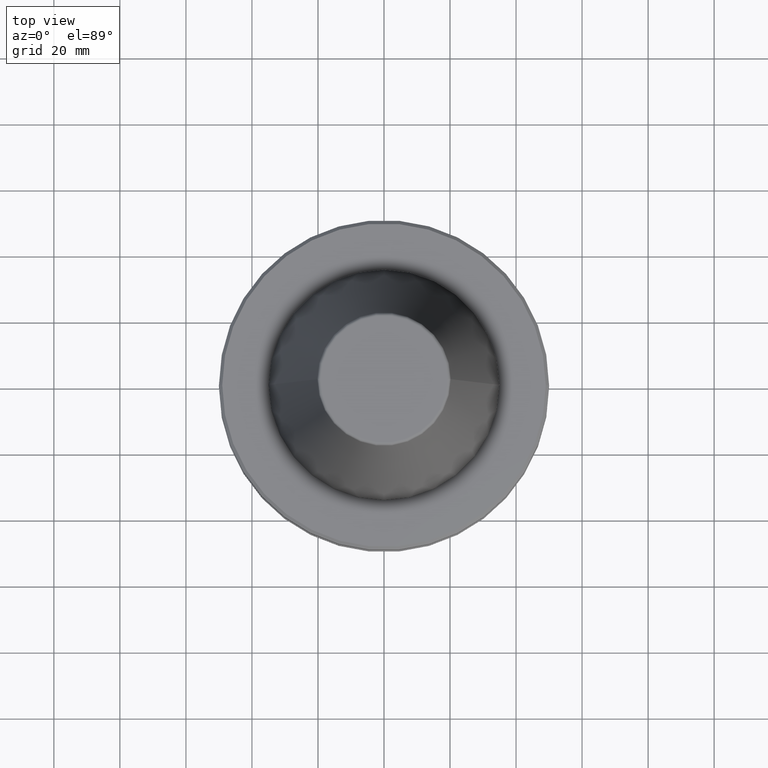
[diagram: clean part render]
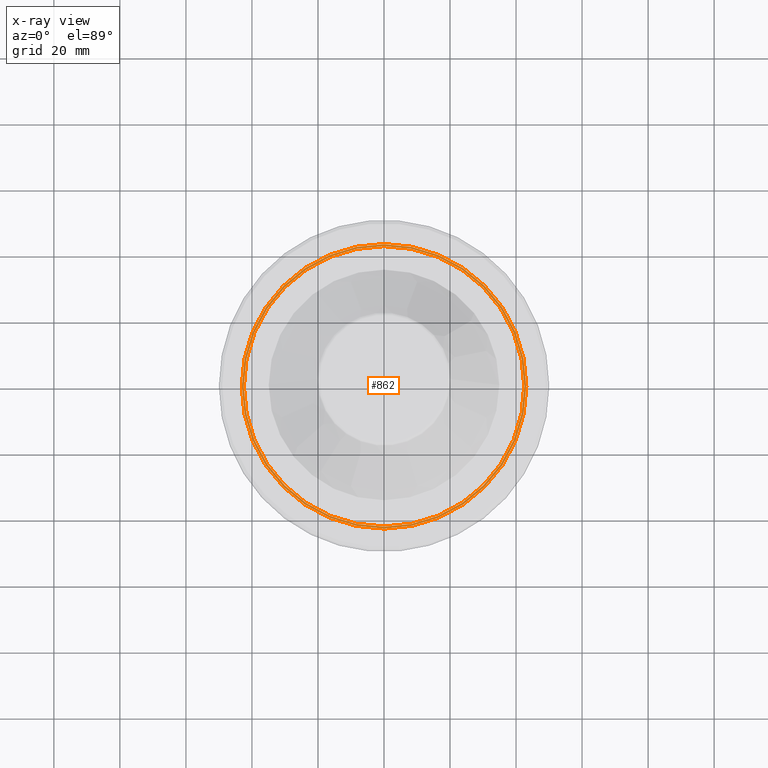
[diagram: x-ray — body ghosted, one internal face saturated and labeled with its STEP entity id]
A machine part, top view, then the same camera in x-ray: the body is ghosted and one INTERNAL B-rep face — a face not visible from any outside direction — is saturated and labeled: STEP entity #862.
In plain terms, the highlighted planar face has unit normal (0, 0, -1).
Its self-contained STEP definition (entity closure, byte-faithful):
#93 = CARTESIAN_POINT ( 'NONE',  ( 0.0000000000000000000, 0.0000000000000000000, -26.70000000000061400 ) ) ;
#136 = DIRECTION ( 'NONE',  ( -0.0000000000000000000, -0.0000000000000000000, 1.000000000000000000 ) ) ;
#137 = DIRECTION ( 'NONE',  ( 0.0000000000000000000, 0.0000000000000000000, -1.000000000000000000 ) ) ;
#181 = DIRECTION ( 'NONE',  ( 1.000000000000000000, 0.0000000000000000000, 0.0000000000000000000 ) ) ;
#184 = CARTESIAN_POINT ( 'NONE',  ( -42.49999999999931800, 5.204748896376167300E-015, -26.70000000000061400 ) ) ;
#195 = EDGE_CURVE ( 'NONE', #623, #907, #452, .T. ) ;
#216 = CARTESIAN_POINT ( 'NONE',  ( -43.07217782648953600, 0.0000000000000000000, -26.70000000000061400 ) ) ;
#253 = FACE_BOUND ( 'NONE', #870, .T. ) ;
#264 = FACE_OUTER_BOUND ( 'NONE', #1157, .T. ) ;
#278 = AXIS2_PLACEMENT_3D ( 'NONE', #934, #345, #1026 ) ;
#303 = CIRCLE ( 'NONE', #469, 42.49999999999931800 ) ;
#318 = CIRCLE ( 'NONE', #1064, 43.07217782648953600 ) ;
#345 = DIRECTION ( 'NONE',  ( -0.0000000000000000000, -0.0000000000000000000, 1.000000000000000000 ) ) ;
#379 = DIRECTION ( 'NONE',  ( -0.0000000000000000000, -0.0000000000000000000, 1.000000000000000000 ) ) ;
#395 = CIRCLE ( 'NONE', #278, 43.07217782648953600 ) ;
#443 = EDGE_CURVE ( 'NONE', #1018, #874, #395, .T. ) ;
#452 = CIRCLE ( 'NONE', #983, 42.49999999999931800 ) ;
#469 = AXIS2_PLACEMENT_3D ( 'NONE', #93, #759, #181 ) ;
#519 = CARTESIAN_POINT ( 'NONE',  ( 0.0000000000000000000, 43.07217782648953600, -26.70000000000061400 ) ) ;
#623 = VERTEX_POINT ( 'NONE', #184 ) ;
#666 = EDGE_CURVE ( 'NONE', #874, #1018, #318, .T. ) ;
#704 = CARTESIAN_POINT ( 'NONE',  ( 0.0000000000000000000, 0.0000000000000000000, -26.70000000000061400 ) ) ;
#706 = PLANE ( 'NONE',  #1012 ) ;
#715 = EDGE_CURVE ( 'NONE', #907, #623, #303, .T. ) ;
#759 = DIRECTION ( 'NONE',  ( -0.0000000000000000000, -0.0000000000000000000, 1.000000000000000000 ) ) ;
#800 = DIRECTION ( 'NONE',  ( 1.000000000000000000, 0.0000000000000000000, 0.0000000000000000000 ) ) ;
#802 = DIRECTION ( 'NONE',  ( -1.000000000000000000, 0.0000000000000000000, -0.0000000000000000000 ) ) ;
#813 = CARTESIAN_POINT ( 'NONE',  ( 42.49999999999931800, 0.0000000000000000000, -26.70000000000061400 ) ) ;
#862 = ADVANCED_FACE ( 'NONE', ( #253, #264 ), #706, .F. ) ;
#870 = EDGE_LOOP ( 'NONE', ( #897, #903 ) ) ;
#874 = VERTEX_POINT ( 'NONE', #216 ) ;
#897 = ORIENTED_EDGE ( 'NONE', *, *, #715, .F. ) ;
#903 = ORIENTED_EDGE ( 'NONE', *, *, #195, .F. ) ;
#906 = ORIENTED_EDGE ( 'NONE', *, *, #666, .T. ) ;
#907 = VERTEX_POINT ( 'NONE', #813 ) ;
#910 = ORIENTED_EDGE ( 'NONE', *, *, #443, .T. ) ;
#934 = CARTESIAN_POINT ( 'NONE',  ( 0.0000000000000000000, 0.0000000000000000000, -26.70000000000061400 ) ) ;
#967 = CARTESIAN_POINT ( 'NONE',  ( 0.0000000000000000000, 0.0000000000000000000, -26.70000000000061400 ) ) ;
#983 = AXIS2_PLACEMENT_3D ( 'NONE', #704, #136, #800 ) ;
#1012 = AXIS2_PLACEMENT_3D ( 'NONE', #519, #137, #802 ) ;
#1018 = VERTEX_POINT ( 'NONE', #1167 ) ;
#1026 = DIRECTION ( 'NONE',  ( 1.000000000000000000, 0.0000000000000000000, 0.0000000000000000000 ) ) ;
#1054 = DIRECTION ( 'NONE',  ( 1.000000000000000000, 0.0000000000000000000, 0.0000000000000000000 ) ) ;
#1064 = AXIS2_PLACEMENT_3D ( 'NONE', #967, #379, #1054 ) ;
#1157 = EDGE_LOOP ( 'NONE', ( #906, #910 ) ) ;
#1167 = CARTESIAN_POINT ( 'NONE',  ( 43.07217782648953600, 5.699027233244171900E-015, -26.70000000000061400 ) ) ;